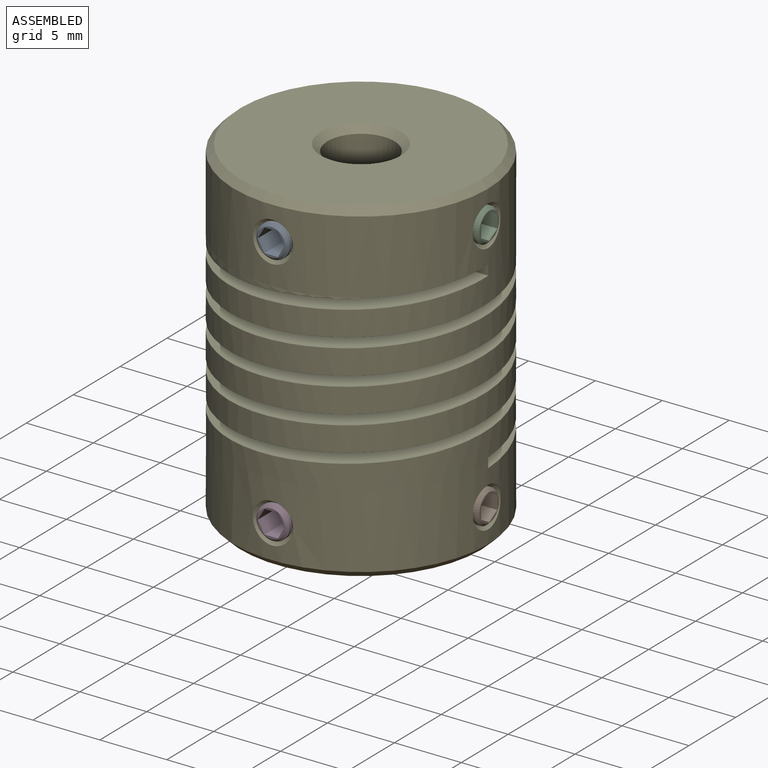
[diagram: assembled view]
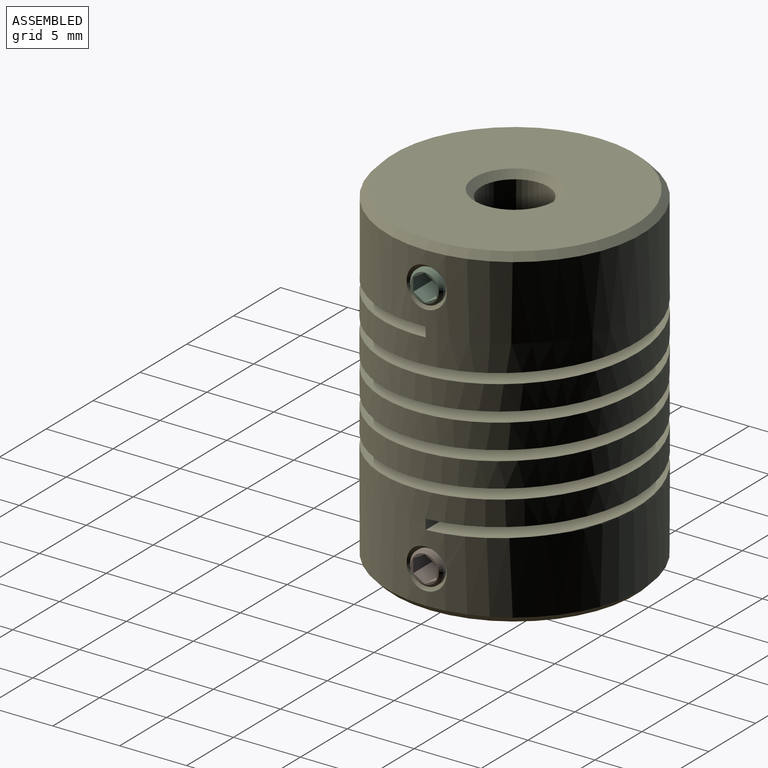
[diagram: assembled view, second angle]
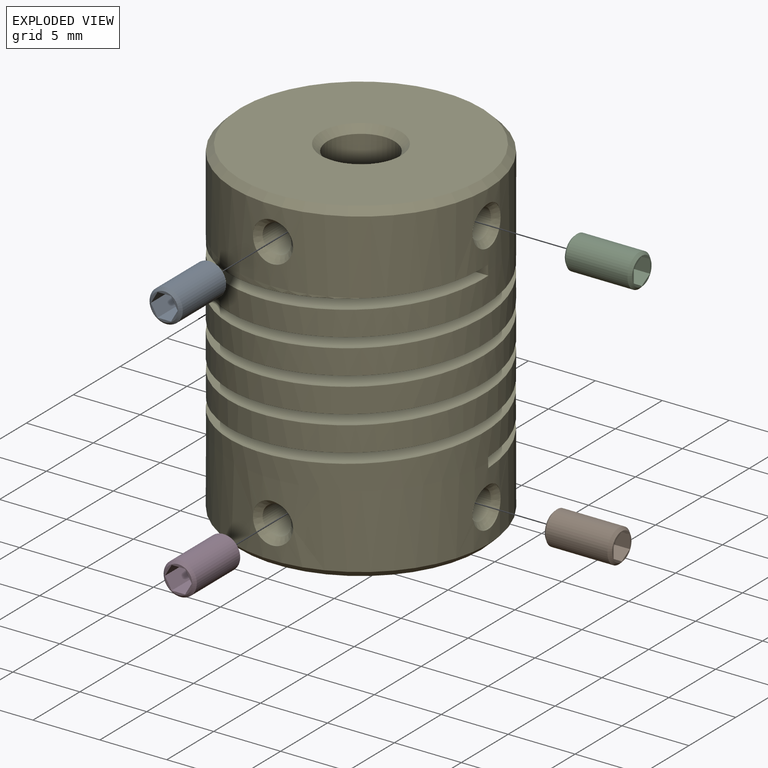
[diagram: exploded view]
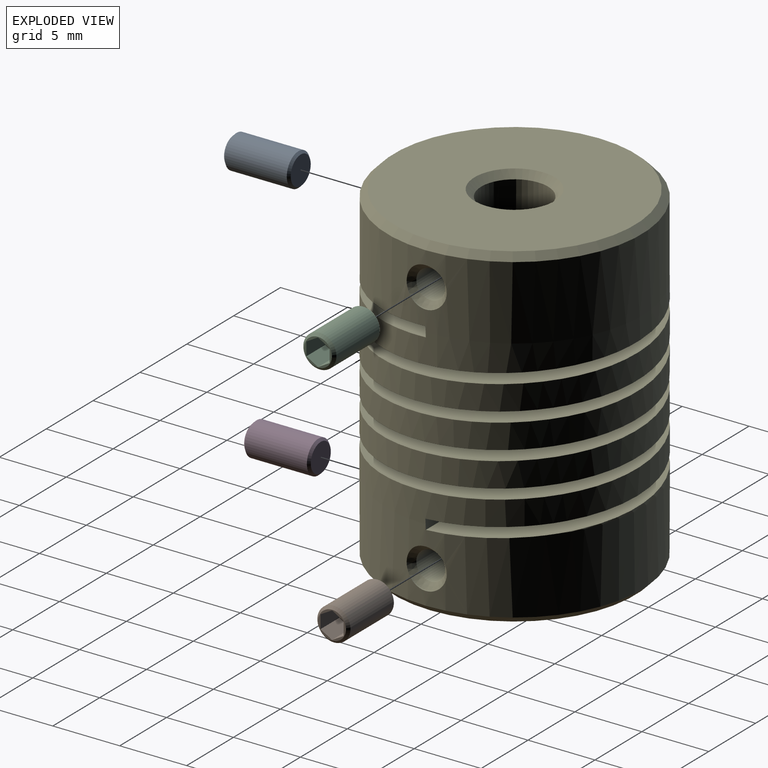
[diagram: exploded view, second angle]
ASSEMBLY  parts=5 mates=4
PART A: 12 faces, bbox 2.5x2.5x5 mm
  f0: plane 2.08x2.08mm, normal (0,0,1), area 0.8mm2, adj f4,f5,f6,f7,f8,f9,f11
  f1: cylinder r=1.24mm len=4.63mm, axis (0,0,1), area 36mm2, adj f3,f11
  f2: plane 2.13x2.13mm, normal (0,0,-1), area 3.6mm2, adj f3
  f3: cone r=1.07mm half-angle=45deg, axis (0,0,1), area 1.8mm2, adj f1,f2
  f4: plane 2x0.87mm, normal (-0.87,-0.5,0), area 2mm2, adj f0,f5,f9,f10
  f5: plane 2x0.87mm, normal (-0.87,0.5,0), area 2mm2, adj f0,f4,f6,f10
  f6: plane 2x1mm, normal (0,1,0), area 2mm2, adj f0,f5,f7,f10
  f7: plane 2x0.87mm, normal (0.87,0.5,0), area 2mm2, adj f0,f6,f8,f10
  f8: plane 2x0.87mm, normal (0.87,-0.5,0), area 2mm2, adj f0,f7,f9,f10
  f9: plane 2x1mm, normal (0,-1,0), area 2mm2, adj f0,f4,f8,f10
  f10: plane 2x1.73mm, normal (0,0,1), area 2.6mm2, adj f4,f5,f6,f7,f8,f9
  f11: cone r=1.24mm half-angle=45deg, axis (0,0,-1), area 2mm2, adj f0,f1
PART B: same geometry as A
PART C: same geometry as A
PART D: same geometry as A
PART E: 36 faces, bbox 19x19x25 mm
  f0: cylinder r=9.5mm len=19mm, axis (0,0,-1), area 312.5mm2, adj f1,f2,f3,f30,f31,f32,f33,f34
  f1: cylinder r=1.5mm len=3mm, axis (0,-1,0), area 0mm2, adj f0,f3
  f2: cylinder r=1.5mm len=1.5mm, axis (0,-1,0), area 0mm2, adj f0,f3
  f3: cone r=1.07mm half-angle=45deg, axis (0,-1,0), area 4.9mm2, adj f0,f1,f2,f4
  f4: cylinder r=1.07mm len=6.46mm, axis (0,-1,0), area 43.6mm2, adj f3,f5
  f5: cylinder r=2.5mm len=7mm, axis (0,0,-1), area 95.7mm2, adj f4,f6,f8,f27,f28,f30,f31
  f6: cylinder r=1.07mm len=6.46mm, axis (1,0,0), area 43.6mm2, adj f5,f7
  f7: cone r=1.07mm half-angle=45deg, axis (1,0,0), area 4.9mm2, adj f6,f33,f34
  f8: cone r=7.5mm half-angle=45deg, axis (0,0,-1), area 30.8mm2, adj f5,f9,f10,f27,f31
  f9: cylinder r=4mm len=8mm, axis (0,0,1), area 16.1mm2, adj f8,f10,f31
  f10: cylinder r=4mm len=8mm, axis (0,0,1), area 46.4mm2, adj f8,f9,f11,f27,f31
  f11: cylinder r=4mm len=8mm, axis (0,0,1), area 46.4mm2, adj f10,f12,f27,f31
  f12: cylinder r=4mm len=8mm, axis (0,0,1), area 46.5mm2, adj f11,f13,f27,f31
  f13: cylinder r=4mm len=8mm, axis (0,0,1), area 154.1mm2, adj f12,f14,f24,f25,f26,f27,f31
  f14: cylinder r=1.07mm len=4.96mm, axis (0,-1,0), area 33.5mm2, adj f13,f15
  f15: cone r=1.07mm half-angle=45deg, axis (0,-1,0), area 4.9mm2, adj f14,f16,f17,f23
  f16: cylinder r=1.5mm len=3mm, axis (0,-1,0), area 0mm2, adj f15,f17
  f17: cylinder r=9.5mm len=19mm, axis (0,0,-1), area 312.5mm2, adj f15,f16,f18,f20,f21,f23,f24,f27
  f18: cylinder r=1.5mm len=3mm, axis (1,0,0), area 0.3mm2, adj f17,f19
  f19: cone r=1.07mm half-angle=45deg, axis (1,0,0), area 4.9mm2, adj f18,f20,f25
  f20: cylinder r=1.5mm len=3mm, axis (1,0,0), area 0.3mm2, adj f17,f19
  f21: cone r=9.5mm half-angle=45deg, axis (0,0,1), area 41.1mm2, adj f17,f22
  f22: plane 18x18mm, normal (0,0,-1), area 190.9mm2, adj f21,f26
  f23: cylinder r=1.5mm len=1.5mm, axis (0,-1,0), area 0mm2, adj f15,f17
  f24: plane 5.5x0.75mm, normal (0,1,0.04), area 4.1mm2, adj f13,f17,f27,f31,f32
  f25: cylinder r=1.07mm len=4.96mm, axis (1,0,0), area 33.5mm2, adj f13,f19
  f26: cone r=4.5mm half-angle=45deg, axis (0,0,-1), area 18.9mm2, adj f13,f22
  f27: bspline ~18.99x18.98mm, area 1219.5mm2, adj f5,f8,f10,f11,f12,f13,f17,f24
  f28: cone r=3mm half-angle=45deg, axis (0,0,1), area 12.2mm2, adj f5,f29
  f29: plane 18x18mm, normal (0,0,1), area 226.2mm2, adj f28,f35
  f30: plane 7x0.75mm, normal (0,-1,-0.04), area 5.3mm2, adj f0,f5,f27,f31,f32
  f31: bspline ~18.99x18.98mm, area 1176.8mm2, adj f0,f5,f8,f9,f10,f11,f12,f13
  f32: cylinder r=9.5mm len=19mm, axis (0,0,-1), area 515.1mm2, adj f0,f17,f24,f27,f30,f31
  f33: cylinder r=1.5mm len=3mm, axis (1,0,0), area 0.3mm2, adj f0,f7
  f34: cylinder r=1.5mm len=3mm, axis (1,0,0), area 0.3mm2, adj f0,f7
  f35: cone r=9mm half-angle=45deg, axis (0,0,-1), area 41.1mm2, adj f0,f29
PLACE A rot(axis=(1,0,0),90deg) t=(30.48,-9.58,40.59)mm
PLACE B rot(axis=(0,1,0),90deg) t=(9.58,31.09,-39.98)mm
PLACE C rot(axis=(0,1,0),90deg) t=(9.58,31.09,-20.98)mm
PLACE D rot(axis=(1,0,0),90deg) t=(30.48,-9.58,21.59)mm
PLACE E at identity fixed
MATE fastened B.f1 <-> E.f18  axis (1,0,0) through (9.38,0,-9.5)mm
MATE fastened D.f1 <-> E.f14  axis (0,1,0) through (0,-9.38,-9.5)mm
MATE fastened C.f1 <-> E.f6  axis (1,0,0) through (9.38,0,9.5)mm
MATE fastened A.f1 <-> E.f1  axis (0,1,0) through (0,-9.38,9.5)mm
